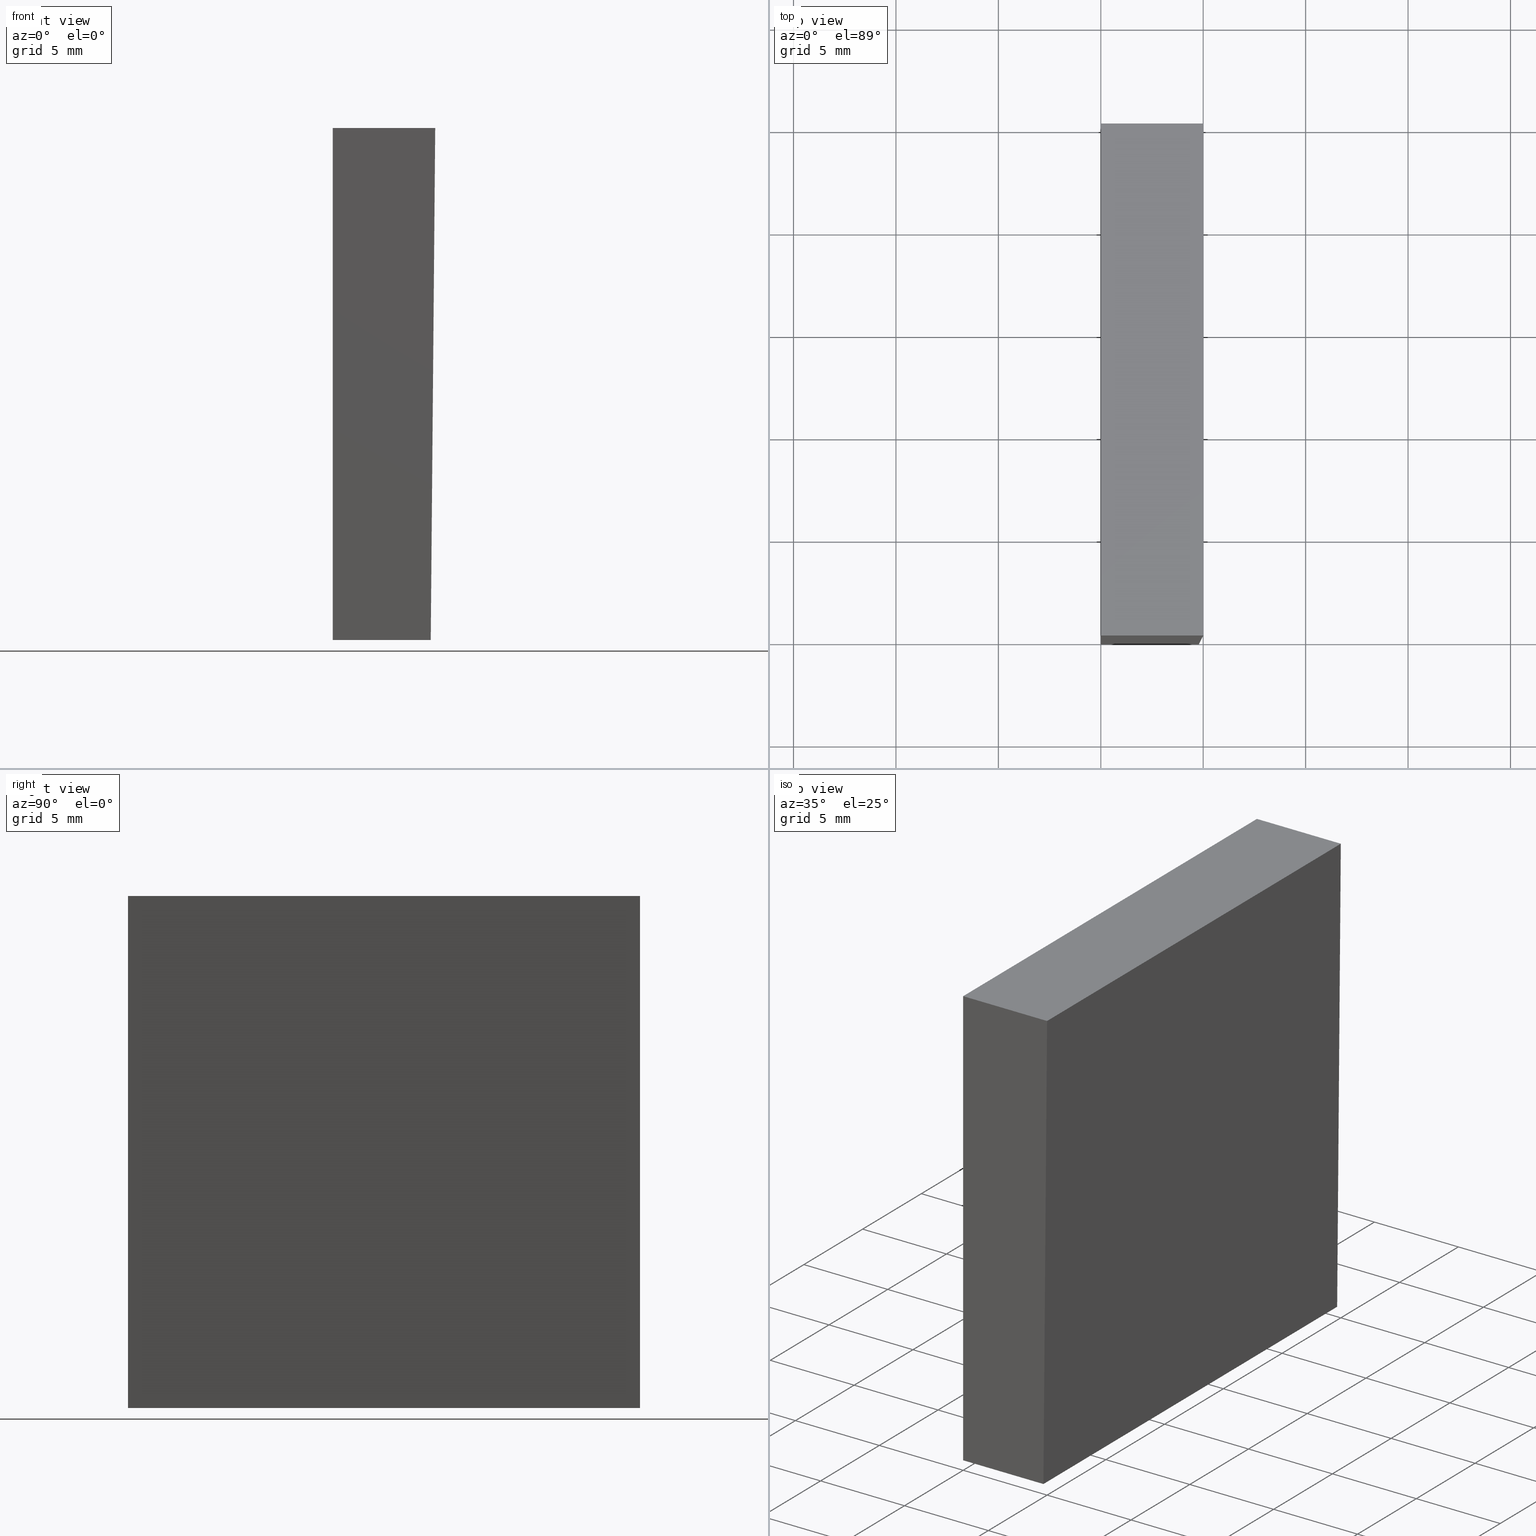
[diagram: canonical four-view strip — front | top / right | iso, engineering-drawing reading convention]
A machine part, canonical four-view strip (front | top / right | iso — engineering-drawing reading convention). The complete STEP part file that produces these views, byte-faithful:
ISO-10303-21;
HEADER;
FILE_DESCRIPTION (( 'STEP AP214' ),
    '1' );
FILE_NAME ('349509.STEP',
    '2019-08-13T02:50:13',
    ( 'user' ),
    ( '΢���й�' ),
    'SwSTEP 2.0',
    'SolidWorks 2016',
    '' );
FILE_SCHEMA (( 'AUTOMOTIVE_DESIGN' ));
ENDSEC;

DATA;
#1 = CLOSED_SHELL ( 'NONE', ( #44, #182, #55, #27, #53, #199 ) ) ;
#2 = PRODUCT_CONTEXT ( 'NONE', #189, 'mechanical' ) ;
#3 = VECTOR ( 'NONE', #130, 1000.000000000000000 ) ;
#4 = APPLICATION_PROTOCOL_DEFINITION ( 'draft international standard', 'automotive_design', 1998, #189 ) ;
#5 = EDGE_LOOP ( 'NONE', ( #200, #190, #34, #75 ) ) ;
#6 = SURFACE_SIDE_STYLE ('',( #74 ) ) ;
#7 = CARTESIAN_POINT ( 'NONE',  ( 5.000000000000003600, 25.00000000000000000, 12.50000000000000000 ) ) ;
#8 = DIRECTION ( 'NONE',  ( -0.0000000000000000000, -1.000000000000000000, -0.0000000000000000000 ) ) ;
#9 = AXIS2_PLACEMENT_3D ( 'NONE', #88, #80, #164 ) ;
#10 = PRODUCT_DEFINITION_SHAPE ( 'NONE', 'NONE',  #157 ) ;
#11 = CARTESIAN_POINT ( 'NONE',  ( 5.000000000000003600, 25.00000000000000000, 12.50000000000000000 ) ) ;
#12 = DIRECTION ( 'NONE',  ( 0.0000000000000000000, 0.0000000000000000000, 1.000000000000000000 ) ) ;
#13 = ORIENTED_EDGE ( 'NONE', *, *, #134, .T. ) ;
#14 = PRODUCT_DEFINITION_FORMATION_WITH_SPECIFIED_SOURCE ( '�κ�', '', #32, .NOT_KNOWN. ) ;
#15 = AXIS2_PLACEMENT_3D ( 'NONE', #166, #105, #52 ) ;
#16 = EDGE_CURVE ( 'NONE', #29, #186, #54, .T. ) ;
#17 = DIRECTION ( 'NONE',  ( 0.0000000000000000000, 0.0000000000000000000, 1.000000000000000000 ) ) ;
#18 =( NAMED_UNIT ( * ) SI_UNIT ( $, .STERADIAN. ) SOLID_ANGLE_UNIT ( ) );
#19 = CARTESIAN_POINT ( 'NONE',  ( 0.0000000000000000000, 0.0000000000000000000, 0.0000000000000000000 ) ) ;
#20 = PLANE ( 'NONE',  #95 ) ;
#21 = ORIENTED_EDGE ( 'NONE', *, *, #124, .T. ) ;
#22 = CARTESIAN_POINT ( 'NONE',  ( 5.000000000000003600, 25.00000000000000000, 12.50000000000000000 ) ) ;
#23 = DIRECTION ( 'NONE',  ( 0.0000000000000000000, 0.0000000000000000000, -1.000000000000000000 ) ) ;
#24 = LINE ( 'NONE', #40, #196 ) ;
#25 = PLANE ( 'NONE',  #123 ) ;
#26 = LINE ( 'NONE', #131, #78 ) ;
#27 = ADVANCED_FACE ( 'NONE', ( #122 ), #180, .F. ) ;
#28 = VERTEX_POINT ( 'NONE', #201 ) ;
#29 = VERTEX_POINT ( 'NONE', #43 ) ;
#30 = PRESENTATION_STYLE_ASSIGNMENT (( #155 ) ) ;
#31 = ORIENTED_EDGE ( 'NONE', *, *, #185, .T. ) ;
#32 = PRODUCT ( '349509', '349509', '', ( #2 ) ) ;
#33 =( NAMED_UNIT ( * ) SI_UNIT ( $, .STERADIAN. ) SOLID_ANGLE_UNIT ( ) );
#34 = ORIENTED_EDGE ( 'NONE', *, *, #77, .F. ) ;
#35 =( LENGTH_UNIT ( ) NAMED_UNIT ( * ) SI_UNIT ( .MILLI., .METRE. ) );
#36 = MECHANICAL_DESIGN_GEOMETRIC_PRESENTATION_REPRESENTATION (  '', ( #195 ), #58 ) ;
#37 = DIRECTION ( 'NONE',  ( 0.0000000000000000000, 0.0000000000000000000, -1.000000000000000000 ) ) ;
#38 = CARTESIAN_POINT ( 'NONE',  ( 1.734723475976807100E-015, 0.0000000000000000000, -12.50000000000000000 ) ) ;
#39 = DIRECTION ( 'NONE',  ( -1.000000000000000000, -0.0000000000000000000, -0.0000000000000000000 ) ) ;
#40 = CARTESIAN_POINT ( 'NONE',  ( 1.734723475976807100E-015, 0.0000000000000000000, -12.50000000000000000 ) ) ;
#41 = PRESENTATION_LAYER_ASSIGNMENT (  '', '', ( #46 ) ) ;
#42 = COLOUR_RGB ( '',1.000000000000000000, 1.000000000000000000, 1.000000000000000000 ) ;
#43 = CARTESIAN_POINT ( 'NONE',  ( 1.734723475976807100E-015, 25.00000000000000000, -12.50000000000000000 ) ) ;
#44 = ADVANCED_FACE ( 'NONE', ( #89 ), #151, .F. ) ;
#45 = ORIENTED_EDGE ( 'NONE', *, *, #137, .T. ) ;
#46 = STYLED_ITEM ( 'NONE', ( #120 ), #170 ) ;
#47 =( LENGTH_UNIT ( ) NAMED_UNIT ( * ) SI_UNIT ( .MILLI., .METRE. ) );
#48 = ORIENTED_EDGE ( 'NONE', *, *, #104, .F. ) ;
#49 = CARTESIAN_POINT ( 'NONE',  ( 1.734723475976807100E-015, 0.0000000000000000000, -12.50000000000000000 ) ) ;
#50 = CARTESIAN_POINT ( 'NONE',  ( 5.000000000000003600, 0.0000000000000000000, 12.50000000000000000 ) ) ;
#51 = CARTESIAN_POINT ( 'NONE',  ( 4.781828305231207400, 25.00000000000000000, -12.50000000000000000 ) ) ;
#52 = DIRECTION ( 'NONE',  ( 0.008726535498366981900, 0.0000000000000000000, 0.9999619230641713100 ) ) ;
#53 = ADVANCED_FACE ( 'NONE', ( #175 ), #68, .F. ) ;
#54 = LINE ( 'NONE', #150, #138 ) ;
#55 = ADVANCED_FACE ( 'NONE', ( #127 ), #25, .F. ) ;
#56 = DIRECTION ( 'NONE',  ( -0.0000000000000000000, -1.000000000000000000, -0.0000000000000000000 ) ) ;
#57 = ORIENTED_EDGE ( 'NONE', *, *, #134, .F. ) ;
#58 =( GEOMETRIC_REPRESENTATION_CONTEXT ( 3 ) GLOBAL_UNCERTAINTY_ASSIGNED_CONTEXT ( ( #107 ) ) GLOBAL_UNIT_ASSIGNED_CONTEXT ( ( #47, #144, #33 ) ) REPRESENTATION_CONTEXT ( 'NONE', 'WORKASPACE' ) );
#59 = EDGE_CURVE ( 'NONE', #147, #160, #76, .T. ) ;
#60 = EDGE_LOOP ( 'NONE', ( #21, #152, #79, #106 ) ) ;
#61 = ORIENTED_EDGE ( 'NONE', *, *, #16, .T. ) ;
#62 = SURFACE_SIDE_STYLE ('',( #168 ) ) ;
#63 = DIRECTION ( 'NONE',  ( 0.0000000000000000000, -0.0000000000000000000, -1.000000000000000000 ) ) ;
#64 = FACE_OUTER_BOUND ( 'NONE', #5, .T. ) ;
#65 = CARTESIAN_POINT ( 'NONE',  ( 4.781828305231207400, 25.00000000000000000, -12.50000000000000000 ) ) ;
#66 = LINE ( 'NONE', #129, #194 ) ;
#67 = CARTESIAN_POINT ( 'NONE',  ( 5.000000000000003600, 0.0000000000000000000, 12.50000000000000000 ) ) ;
#68 = PLANE ( 'NONE',  #9 ) ;
#69 = UNCERTAINTY_MEASURE_WITH_UNIT (LENGTH_MEASURE( 1.000000000000000100E-005 ), #35, 'distance_accuracy_value', 'NONE');
#70 = EDGE_CURVE ( 'NONE', #160, #111, #202, .T. ) ;
#71 = VECTOR ( 'NONE', #163, 1000.000000000000000 ) ;
#72 = ORIENTED_EDGE ( 'NONE', *, *, #143, .F. ) ;
#73 = ORIENTED_EDGE ( 'NONE', *, *, #16, .F. ) ;
#74 = SURFACE_STYLE_FILL_AREA ( #112 ) ;
#75 = ORIENTED_EDGE ( 'NONE', *, *, #87, .F. ) ;
#76 = LINE ( 'NONE', #11, #198 ) ;
#77 = EDGE_CURVE ( 'NONE', #28, #113, #142, .T. ) ;
#78 = VECTOR ( 'NONE', #193, 1000.000000000000000 ) ;
#79 = ORIENTED_EDGE ( 'NONE', *, *, #59, .F. ) ;
#80 = DIRECTION ( 'NONE',  ( 0.0000000000000000000, -1.000000000000000000, 0.0000000000000000000 ) ) ;
#81 = FACE_OUTER_BOUND ( 'NONE', #154, .T. ) ;
#82 = PLANE ( 'NONE',  #98 ) ;
#83 = ORIENTED_EDGE ( 'NONE', *, *, #185, .F. ) ;
#84 =( NAMED_UNIT ( * ) PLANE_ANGLE_UNIT ( ) SI_UNIT ( $, .RADIAN. ) );
#85 = CARTESIAN_POINT ( 'NONE',  ( 4.781828305231207400, 0.0000000000000000000, -12.50000000000000000 ) ) ;
#86 = DIRECTION ( 'NONE',  ( 0.0000000000000000000, 0.0000000000000000000, 1.000000000000000000 ) ) ;
#87 = EDGE_CURVE ( 'NONE', #186, #28, #24, .T. ) ;
#88 = CARTESIAN_POINT ( 'NONE',  ( 0.0000000000000000000, 25.00000000000000000, 0.0000000000000000000 ) ) ;
#89 = FACE_OUTER_BOUND ( 'NONE', #192, .T. ) ;
#90 = MECHANICAL_DESIGN_GEOMETRIC_PRESENTATION_REPRESENTATION (  '', ( #46 ), #173 ) ;
#91 = EDGE_LOOP ( 'NONE', ( #13, #45, #167, #93 ) ) ;
#92 = VECTOR ( 'NONE', #8, 1000.000000000000000 ) ;
#93 = ORIENTED_EDGE ( 'NONE', *, *, #59, .T. ) ;
#94 = APPLICATION_CONTEXT ( 'automotive_design' ) ;
#95 = AXIS2_PLACEMENT_3D ( 'NONE', #158, #145, #37 ) ;
#96 = FILL_AREA_STYLE_COLOUR ( '', #42 ) ;
#97 = SURFACE_STYLE_USAGE ( .BOTH. , #6 ) ;
#98 = AXIS2_PLACEMENT_3D ( 'NONE', #19, #176, #63 ) ;
#99 = DIRECTION ( 'NONE',  ( 0.0000000000000000000, 0.0000000000000000000, 1.000000000000000000 ) ) ;
#100 = EDGE_LOOP ( 'NONE', ( #184, #48, #72, #31 ) ) ;
#101 = DIRECTION ( 'NONE',  ( -0.0000000000000000000, -1.000000000000000000, -0.0000000000000000000 ) ) ;
#102 = DIRECTION ( 'NONE',  ( 1.000000000000000000, 0.0000000000000000000, -0.0000000000000000000 ) ) ;
#103 = VECTOR ( 'NONE', #101, 1000.000000000000000 ) ;
#104 = EDGE_CURVE ( 'NONE', #147, #113, #121, .T. ) ;
#105 = DIRECTION ( 'NONE',  ( -0.9999619230641714200, 0.0000000000000000000, 0.008726535498366983600 ) ) ;
#106 = ORIENTED_EDGE ( 'NONE', *, *, #104, .T. ) ;
#107 = UNCERTAINTY_MEASURE_WITH_UNIT (LENGTH_MEASURE( 1.000000000000000100E-005 ), #47, 'distance_accuracy_value', 'NONE');
#108 = VERTEX_POINT ( 'NONE', #181 ) ;
#109 = LINE ( 'NONE', #114, #115 ) ;
#110 = DIRECTION ( 'NONE',  ( 1.000000000000000000, 0.0000000000000000000, 0.0000000000000000000 ) ) ;
#111 = VERTEX_POINT ( 'NONE', #85 ) ;
#112 = FILL_AREA_STYLE ('',( #161 ) ) ;
#113 = VERTEX_POINT ( 'NONE', #67 ) ;
#114 = CARTESIAN_POINT ( 'NONE',  ( 1.734723475976807100E-015, 25.00000000000000000, -12.50000000000000000 ) ) ;
#115 = VECTOR ( 'NONE', #99, 1000.000000000000000 ) ;
#116 = DIRECTION ( 'NONE',  ( -1.000000000000000000, 0.0000000000000000000, -0.0000000000000000000 ) ) ;
#117 = VECTOR ( 'NONE', #39, 1000.000000000000000 ) ;
#118 = ORIENTED_EDGE ( 'NONE', *, *, #87, .T. ) ;
#119 = PRODUCT_DEFINITION_CONTEXT ( 'detailed design', #94, 'design' ) ;
#120 = PRESENTATION_STYLE_ASSIGNMENT (( #97 ) ) ;
#121 = LINE ( 'NONE', #22, #92 ) ;
#122 = FACE_OUTER_BOUND ( 'NONE', #60, .T. ) ;
#123 = AXIS2_PLACEMENT_3D ( 'NONE', #197, #23, #116 ) ;
#124 = EDGE_CURVE ( 'NONE', #113, #111, #177, .T. ) ;
#125 = LINE ( 'NONE', #49, #3 ) ;
#126 =( NAMED_UNIT ( * ) PLANE_ANGLE_UNIT ( ) SI_UNIT ( $, .RADIAN. ) );
#127 = FACE_OUTER_BOUND ( 'NONE', #100, .T. ) ;
#128 = ORIENTED_EDGE ( 'NONE', *, *, #70, .T. ) ;
#129 = CARTESIAN_POINT ( 'NONE',  ( 1.734723475976807100E-015, 25.00000000000000000, 12.50000000000000000 ) ) ;
#130 = DIRECTION ( 'NONE',  ( -1.000000000000000000, -0.0000000000000000000, -0.0000000000000000000 ) ) ;
#131 = CARTESIAN_POINT ( 'NONE',  ( 1.734723475976807100E-015, 25.00000000000000000, 12.50000000000000000 ) ) ;
#132 = DIRECTION ( 'NONE',  ( -0.008726535498366983600, 0.0000000000000000000, -0.9999619230641713100 ) ) ;
#133 = CARTESIAN_POINT ( 'NONE',  ( 1.734723475976807100E-015, 25.00000000000000000, -12.50000000000000000 ) ) ;
#134 = EDGE_CURVE ( 'NONE', #160, #29, #159, .T. ) ;
#135 = AXIS2_PLACEMENT_3D ( 'NONE', #133, #12, #102 ) ;
#136 = ADVANCED_BREP_SHAPE_REPRESENTATION ( '349509', ( #170, #172 ), #183 ) ;
#137 = EDGE_CURVE ( 'NONE', #29, #108, #109, .T. ) ;
#138 = VECTOR ( 'NONE', #56, 1000.000000000000000 ) ;
#139 = VECTOR ( 'NONE', #148, 1000.000000000000200 ) ;
#140 = PRESENTATION_LAYER_ASSIGNMENT (  '', '', ( #195 ) ) ;
#141 = ORIENTED_EDGE ( 'NONE', *, *, #169, .T. ) ;
#142 = LINE ( 'NONE', #149, #71 ) ;
#143 = EDGE_CURVE ( 'NONE', #108, #147, #26, .T. ) ;
#144 =( NAMED_UNIT ( * ) PLANE_ANGLE_UNIT ( ) SI_UNIT ( $, .RADIAN. ) );
#145 = DIRECTION ( 'NONE',  ( 1.000000000000000000, 0.0000000000000000000, 0.0000000000000000000 ) ) ;
#146 = DIRECTION ( 'NONE',  ( -0.0000000000000000000, -1.000000000000000000, -0.0000000000000000000 ) ) ;
#147 = VERTEX_POINT ( 'NONE', #7 ) ;
#148 = DIRECTION ( 'NONE',  ( -0.008726535498366983600, 0.0000000000000000000, -0.9999619230641713100 ) ) ;
#149 = CARTESIAN_POINT ( 'NONE',  ( 1.734723475976807100E-015, 0.0000000000000000000, 12.50000000000000000 ) ) ;
#150 = CARTESIAN_POINT ( 'NONE',  ( 1.734723475976807100E-015, 25.00000000000000000, -12.50000000000000000 ) ) ;
#151 = PLANE ( 'NONE',  #135 ) ;
#152 = ORIENTED_EDGE ( 'NONE', *, *, #70, .F. ) ;
#153 = SHAPE_DEFINITION_REPRESENTATION ( #10, #136 ) ;
#154 = EDGE_LOOP ( 'NONE', ( #118, #83, #171, #61 ) ) ;
#155 = SURFACE_STYLE_USAGE ( .BOTH. , #62 ) ;
#156 = CARTESIAN_POINT ( 'NONE',  ( 0.0000000000000000000, 0.0000000000000000000, 0.0000000000000000000 ) ) ;
#157 = PRODUCT_DEFINITION ( 'δ֪', '', #14, #119 ) ;
#158 = CARTESIAN_POINT ( 'NONE',  ( 1.734723475976807100E-015, 25.00000000000000000, -12.50000000000000000 ) ) ;
#159 = LINE ( 'NONE', #162, #117 ) ;
#160 = VERTEX_POINT ( 'NONE', #65 ) ;
#161 = FILL_AREA_STYLE_COLOUR ( '', #188 ) ;
#162 = CARTESIAN_POINT ( 'NONE',  ( 1.734723475976807100E-015, 25.00000000000000000, -12.50000000000000000 ) ) ;
#163 = DIRECTION ( 'NONE',  ( 1.000000000000000000, 0.0000000000000000000, 0.0000000000000000000 ) ) ;
#164 = DIRECTION ( 'NONE',  ( 0.0000000000000000000, -0.0000000000000000000, -1.000000000000000000 ) ) ;
#165 = PRODUCT_RELATED_PRODUCT_CATEGORY ( 'part', '', ( #32 ) ) ;
#166 = CARTESIAN_POINT ( 'NONE',  ( 5.000000000000003600, 25.00000000000000000, 12.50000000000000000 ) ) ;
#167 = ORIENTED_EDGE ( 'NONE', *, *, #143, .T. ) ;
#168 = SURFACE_STYLE_FILL_AREA ( #174 ) ;
#169 = EDGE_CURVE ( 'NONE', #111, #186, #125, .T. ) ;
#170 = MANIFOLD_SOLID_BREP ( '͹̨-����1', #1 ) ;
#171 = ORIENTED_EDGE ( 'NONE', *, *, #137, .F. ) ;
#172 = AXIS2_PLACEMENT_3D ( 'NONE', #156, #17, #110 ) ;
#173 =( GEOMETRIC_REPRESENTATION_CONTEXT ( 3 ) GLOBAL_UNCERTAINTY_ASSIGNED_CONTEXT ( ( #179 ) ) GLOBAL_UNIT_ASSIGNED_CONTEXT ( ( #191, #84, #178 ) ) REPRESENTATION_CONTEXT ( 'NONE', 'WORKASPACE' ) );
#174 = FILL_AREA_STYLE ('',( #96 ) ) ;
#175 = FACE_OUTER_BOUND ( 'NONE', #91, .T. ) ;
#176 = DIRECTION ( 'NONE',  ( 0.0000000000000000000, -1.000000000000000000, 0.0000000000000000000 ) ) ;
#177 = LINE ( 'NONE', #50, #139 ) ;
#178 =( NAMED_UNIT ( * ) SI_UNIT ( $, .STERADIAN. ) SOLID_ANGLE_UNIT ( ) );
#179 = UNCERTAINTY_MEASURE_WITH_UNIT (LENGTH_MEASURE( 1.000000000000000100E-005 ), #191, 'distance_accuracy_value', 'NONE');
#180 = PLANE ( 'NONE',  #15 ) ;
#181 = CARTESIAN_POINT ( 'NONE',  ( 1.734723475976807100E-015, 25.00000000000000000, 12.50000000000000000 ) ) ;
#182 = ADVANCED_FACE ( 'NONE', ( #81 ), #20, .F. ) ;
#183 =( GEOMETRIC_REPRESENTATION_CONTEXT ( 3 ) GLOBAL_UNCERTAINTY_ASSIGNED_CONTEXT ( ( #69 ) ) GLOBAL_UNIT_ASSIGNED_CONTEXT ( ( #35, #126, #18 ) ) REPRESENTATION_CONTEXT ( 'NONE', 'WORKASPACE' ) );
#184 = ORIENTED_EDGE ( 'NONE', *, *, #77, .T. ) ;
#185 = EDGE_CURVE ( 'NONE', #108, #28, #66, .T. ) ;
#186 = VERTEX_POINT ( 'NONE', #38 ) ;
#187 = APPLICATION_PROTOCOL_DEFINITION ( 'draft international standard', 'automotive_design', 1998, #94 ) ;
#188 = COLOUR_RGB ( '',1.000000000000000000, 1.000000000000000000, 1.000000000000000000 ) ;
#189 = APPLICATION_CONTEXT ( 'automotive_design' ) ;
#190 = ORIENTED_EDGE ( 'NONE', *, *, #124, .F. ) ;
#191 =( LENGTH_UNIT ( ) NAMED_UNIT ( * ) SI_UNIT ( .MILLI., .METRE. ) );
#192 = EDGE_LOOP ( 'NONE', ( #141, #73, #57, #128 ) ) ;
#193 = DIRECTION ( 'NONE',  ( 1.000000000000000000, 0.0000000000000000000, 0.0000000000000000000 ) ) ;
#194 = VECTOR ( 'NONE', #146, 1000.000000000000000 ) ;
#195 = STYLED_ITEM ( 'NONE', ( #30 ), #136 ) ;
#196 = VECTOR ( 'NONE', #86, 1000.000000000000000 ) ;
#197 = CARTESIAN_POINT ( 'NONE',  ( 1.734723475976807100E-015, 25.00000000000000000, 12.50000000000000000 ) ) ;
#198 = VECTOR ( 'NONE', #132, 1000.000000000000200 ) ;
#199 = ADVANCED_FACE ( 'NONE', ( #64 ), #82, .T. ) ;
#200 = ORIENTED_EDGE ( 'NONE', *, *, #169, .F. ) ;
#201 = CARTESIAN_POINT ( 'NONE',  ( 1.734723475976807100E-015, 0.0000000000000000000, 12.50000000000000000 ) ) ;
#202 = LINE ( 'NONE', #51, #103 ) ;
ENDSEC;
END-ISO-10303-21;
